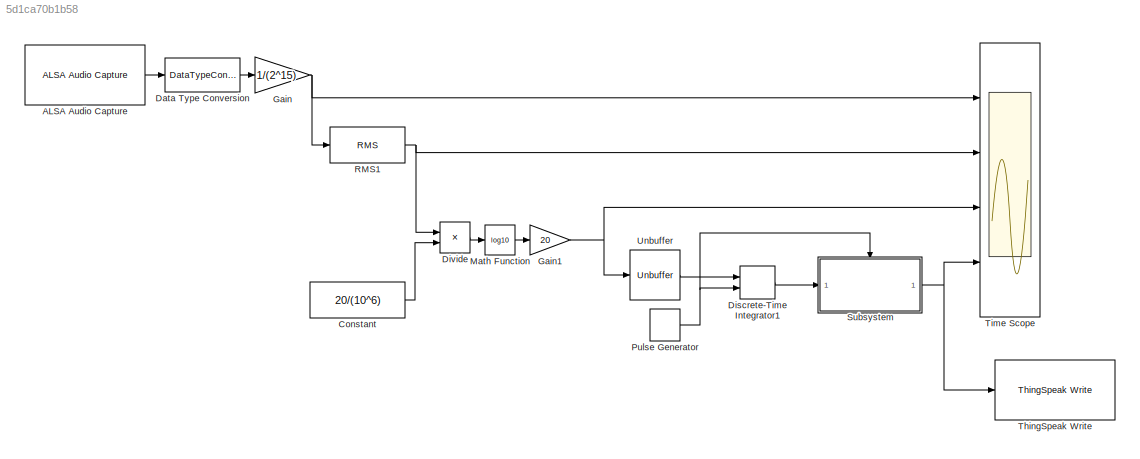
MODEL slx_5d1ca70b1b58
KIND model
CONFIG AbsTol = auto
CONFIG FixedStep = auto
CONFIG MaxStep = auto
CONFIG MinStep = auto
CONFIG RelTol = 1e-3
CONFIG SampleTimeConstraint = Unconstrained
CONFIG Solver = FixedStepAuto
CONFIG SolverMode = Auto
CONFIG SolverName = FixedStepAuto
CONFIG StartTime = 0.0
CONFIG StopTime = 100
BLOCK [Reference] ALSA Audio Capture  REF=embdlinuxlib/ALSA Audio Capture
  Ports = [0, 1]
  SourceBlock = embdlinuxlib/ALSA Audio Capture
  SourceType = ALSA Audio Capture
BLOCK [Constant] Constant
  Value = 20/(10^6)
BLOCK [DataTypeConversion] Data Type Conversion
  OutDataTypeStr = double
  RndMeth = Floor
  SaturateOnIntegerOverflow = off
BLOCK [DiscreteIntegrator] Discrete-Time Integrator1
  ExternalReset = falling
  ICPrevOutput = DiscIntNeverNeededParam
  ICPrevScaledInput = DiscIntNeverNeededParam
  InitialConditionSetting = State (most efficient)
  Ports = [2, 1]
  SampleTime = -1
BLOCK [Product] Divide
  InputSameDT = off
  Inputs = */
  OutDataTypeStr = Inherit: Inherit via internal rule
  Ports = [2, 1]
  RndMeth = Floor
  SaturateOnIntegerOverflow = off
BLOCK [Gain] Gain
  Gain = 1/(2^15)
  OutDataTypeStr = Inherit: Inherit via internal rule
  ParamDataTypeStr = Inherit: Inherit via internal rule
  SaturateOnIntegerOverflow = off
BLOCK [Gain] Gain1
  Gain = 20
  OutDataTypeStr = Inherit: Inherit via internal rule
  ParamDataTypeStr = Inherit: Inherit via internal rule
  SaturateOnIntegerOverflow = off
BLOCK [Math] Math Function
  Operator = log10
  Ports = [1, 1]
BLOCK [DiscretePulseGenerator] Pulse Generator
  Period = 600
  Ports = [0, 1]
  SampleTime = 0.1
BLOCK [Reference] RMS1  REF=dspstat3/RMS
  Ports = [1, 1]
  SourceBlock = dspstat3/RMS
  SourceType = RMS
  UserDataPersistent = on
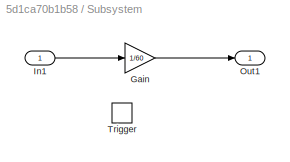
BLOCK [SubSystem] Subsystem
  Ports = [1, 1, 0, 1]
  RequestExecContextInheritance = off
  Variant = off
BLOCK [Gain] Subsystem/Gain
  Gain = 1/60
  OutDataTypeStr = Inherit: Inherit via internal rule
  ParamDataTypeStr = Inherit: Inherit via internal rule
  SaturateOnIntegerOverflow = off
BLOCK [Inport] Subsystem/In1
  IconDisplay = Port number
BLOCK [Outport] Subsystem/Out1
  IconDisplay = Port number
BLOCK [TriggerPort] Subsystem/Trigger
  PortDimensions = 1
  Ports = []
  StatesWhenEnabling = held
  VariantControl = Variant
BLOCK [Reference] ThingSpeak Write  REF=raspberrypilib/ThingSpeak Write
  Ports = [1]
  SourceBlock = raspberrypilib/ThingSpeak Write
  SourceType = realtime.internal.linux_thingspeak
BLOCK [Scope] Time Scope
  DefaultConfigurationName = spbscopes.TimeScopeBlockCfg
  NumInputPorts = 4
  Ports = [4]
  ScopeSpecificationString = spbscopes.TimeScopeBlockCfg('CurrentConfiguration', extmgr.ConfigurationSet(extmgr.Configuration('Core','General UI',true),extmgr.Configuration('Core','Source UI',true),extmgr.Configuration('Sources','WiredSimulink',true),extmgr.Configuration('Visuals','Time Domain',true,'DisplayLayoutDimensions',[2 2],'DisplayPropertyDefaults',struct('YLabelReal','Amplitude','LegendVisibility','Off','XGrid',true,...<+3531ch>
  UserDataPersistent = on
BLOCK [Unbuffer] Unbuffer
  Ports = [1, 1]
  SampleBasedProcessing = Same as frame based
LINE ALSA Audio Capture:1 -> Data Type Conversion:1
LINE Constant:1 -> Divide:2
LINE Data Type Conversion:1 -> Gain:1
LINE Discrete-Time Integrator1:1 -> Subsystem:1
LINE Divide:1 -> Math Function:1
NET Gain1:1 -> Time Scope:3, Unbuffer:1
NET Gain:1 -> RMS1:1, Time Scope:1
LINE Math Function:1 -> Gain1:1
NET Pulse Generator:1 -> Discrete-Time Integrator1:2, Subsystem:trigger
NET RMS1:1 -> Divide:1, Time Scope:2
LINE Subsystem/Gain:1 -> Subsystem/Out1:1
LINE Subsystem/In1:1 -> Subsystem/Gain:1
NET Subsystem:1 -> ThingSpeak Write:1, Time Scope:4
LINE Unbuffer:1 -> Discrete-Time Integrator1:1
note: NET lines group one-source signal fan-out (src -> all destinations, sorted); 1:1 wires keep LINE
